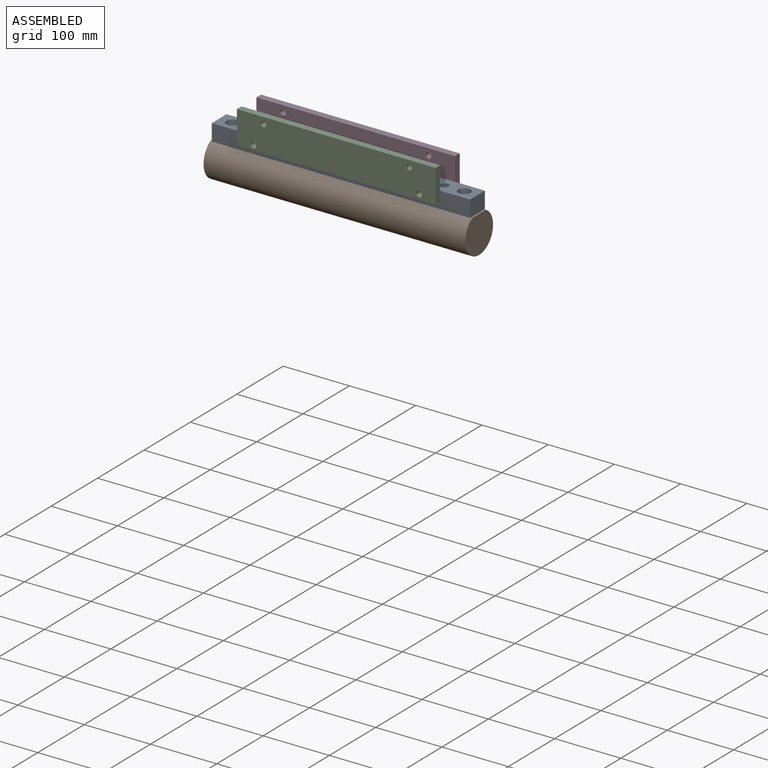
[diagram: assembled view]
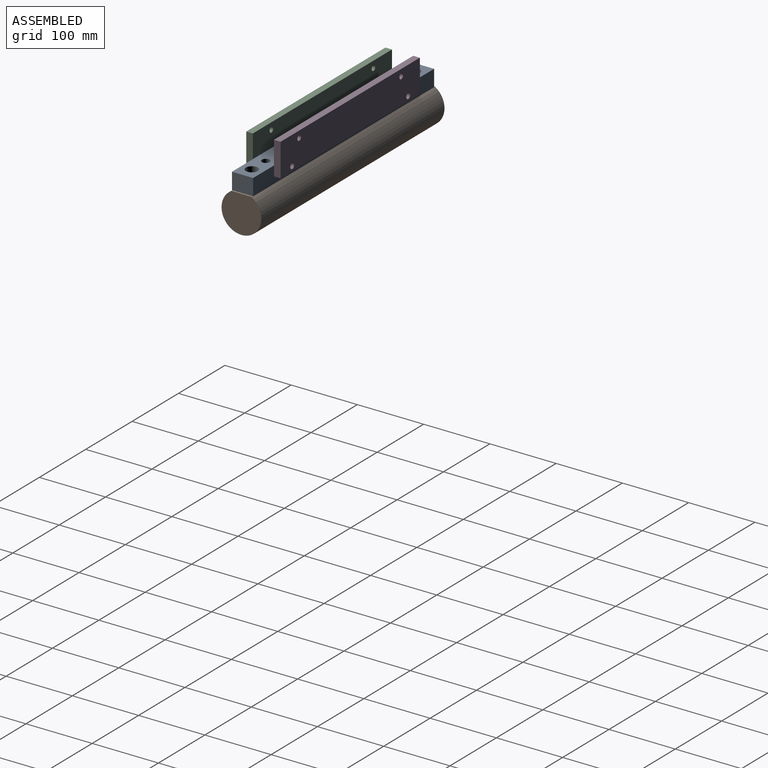
[diagram: assembled view, second angle]
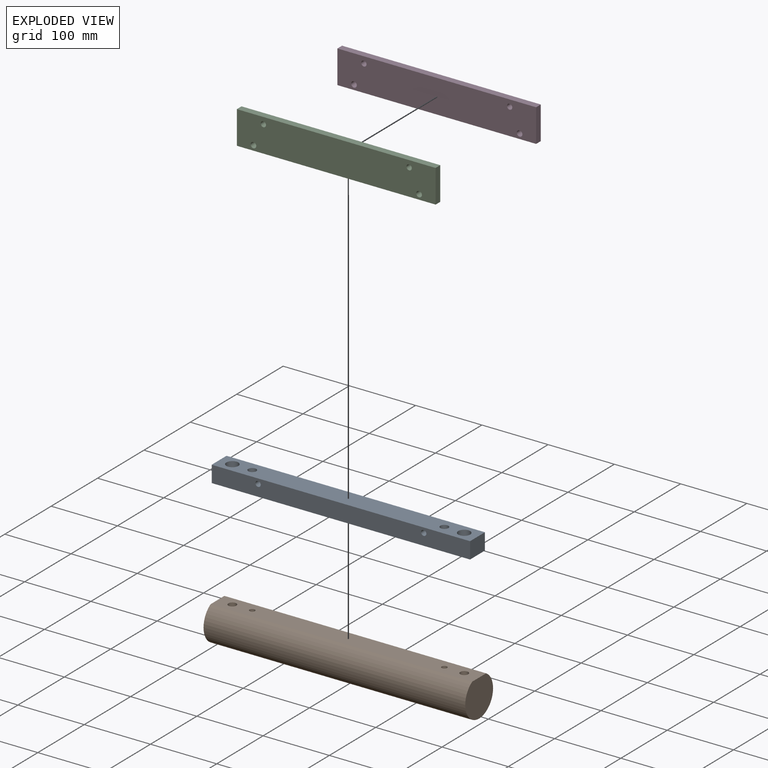
[diagram: exploded view]
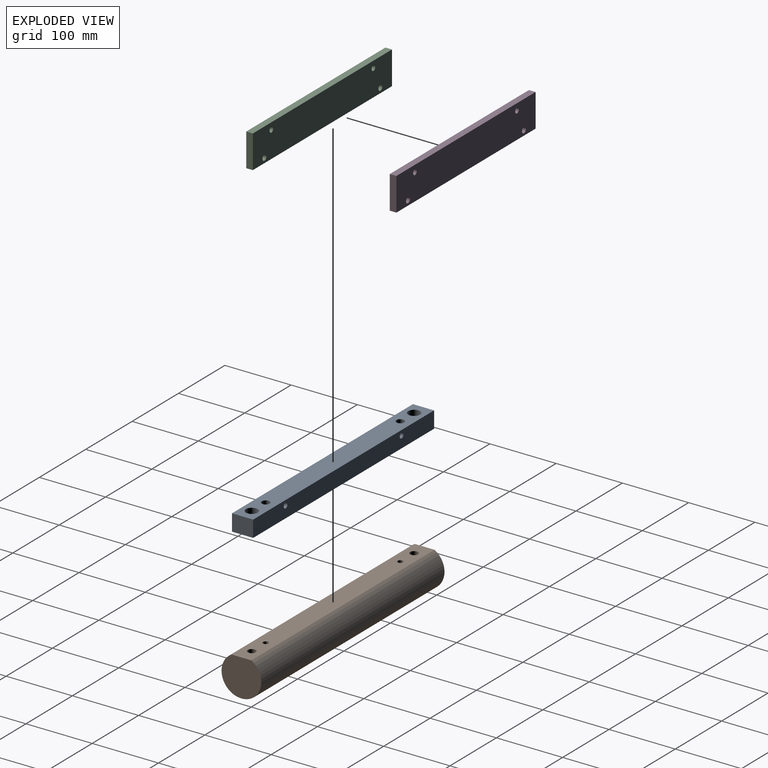
[diagram: exploded view, second angle]
ASSEMBLY  parts=4 mates=4
PART A: 16 faces, bbox 390x32x25 mm
  f0: cylinder r=6.5mm len=13mm, axis (0,0,-1), area 490.1mm2, adj f5,f12
  f1: cylinder r=6.5mm len=13mm, axis (0,0,-1), area 490.1mm2, adj f5,f10
  f2: plane 390x25mm, normal (0,1,0), area 9649.5mm2, adj f3,f5,f6,f7,f8,f9
  f3: plane 390x32mm, normal (0,0,1), area 11744.9mm2, adj f2,f4,f6,f7,f11,f13,f14,f15
  f4: plane 390x25mm, normal (0,-1,0), area 9649.5mm2, adj f3,f5,f6,f7,f8,f9
  f5: plane 390x32mm, normal (0,0,-1), area 11988.3mm2, adj f0,f1,f2,f4,f6,f7,f14,f15
  f6: plane 32x25mm, normal (1,0,0), area 800mm2, adj f2,f3,f4,f5
  f7: plane 32x25mm, normal (-1,0,0), area 800mm2, adj f2,f3,f4,f5
  f8: cylinder r=4mm len=32mm, axis (0,1,0), area 804.2mm2, adj f2,f4
  f9: cylinder r=4mm len=32mm, axis (0,1,0), area 804.2mm2, adj f2,f4
  f10: plane 18x18mm, normal (0,0,1), area 121.7mm2, adj f1,f11
  f11: cylinder r=9mm len=18mm, axis (0,0,1), area 735.1mm2, adj f3,f10
  f12: plane 18x18mm, normal (0,0,1), area 121.7mm2, adj f0,f13
  f13: cylinder r=9mm len=18mm, axis (0,0,1), area 735.1mm2, adj f3,f12
  f14: cylinder r=6mm len=25mm, axis (0,0,-1), area 942.5mm2, adj f3,f5
  f15: cylinder r=6mm len=25mm, axis (0,0,-1), area 942.5mm2, adj f3,f5
PART B: 10 faces, bbox 395x60x56 mm
  f0: cylinder r=30mm len=395mm, axis (-1,0,0), area 61975.7mm2, adj f1,f2,f3,f4,f5
  f1: plane 395x29.93mm, normal (0,0,-1), area 11496.9mm2, adj f0,f2,f3,f4,f5,f6,f7
  f2: plane 60x56mm, normal (1,0,0), area 2746.5mm2, adj f0,f1
  f3: plane 60x56mm, normal (-1,0,0), area 2746.5mm2, adj f0,f1
  f4: cylinder r=4mm len=56mm, axis (0,0,-1), area 1404.1mm2, adj f0,f1
  f5: cylinder r=4mm len=56mm, axis (0,0,-1), area 1404.1mm2, adj f0,f1
  f6: cylinder r=6mm len=37mm, axis (0,0,-1), area 1394.9mm2, adj f1,f8
  f7: cylinder r=6mm len=37mm, axis (0,0,-1), area 1394.9mm2, adj f1,f9
  f8: cone r=6mm half-angle=45deg, axis (0,0,-1), area 159.9mm2, adj f6
  f9: cone r=6mm half-angle=45deg, axis (0,0,-1), area 159.9mm2, adj f7
PART C: 10 faces, bbox 300x50x10 mm
  f0: plane 300x10mm, normal (0,1,0), area 3000mm2, adj f1,f3,f4,f5
  f1: plane 300x50mm, normal (0,0,1), area 14786mm2, adj f0,f2,f4,f5,f6,f7,f8,f9
  f2: plane 300x10mm, normal (0,-1,0), area 3000mm2, adj f1,f3,f4,f5
  f3: plane 300x50mm, normal (0,0,-1), area 14786mm2, adj f0,f2,f4,f5,f6,f7,f8,f9
  f4: plane 50x10mm, normal (1,0,0), area 500mm2, adj f0,f1,f2,f3
  f5: plane 50x10mm, normal (-1,0,0), area 500mm2, adj f0,f1,f2,f3
  f6: cylinder r=4.25mm len=10mm, axis (0,0,1), area 267mm2, adj f1,f3
  f7: cylinder r=4.25mm len=10mm, axis (0,0,1), area 267mm2, adj f1,f3
  f8: cylinder r=4mm len=10mm, axis (0,0,1), area 251.3mm2, adj f1,f3
  f9: cylinder r=4mm len=10mm, axis (0,0,1), area 251.3mm2, adj f1,f3
PART D: same geometry as C
PLACE A t=(505.11,83.55,-24.36)mm
PLACE B rot(axis=(0,-1,0),180deg) t=(897.61,83.55,-62.86)mm
PLACE C rot(axis=(0,-0.71,0.71),180deg) t=(850.11,62.55,-1.86)mm
PLACE D rot(axis=(0,0.71,-0.71),180deg) t=(850.11,104.55,-1.86)mm
MATE parallel C.f3 <-> A.f9  axis (0,1,0) through (700.11,67.55,-1.82)mm
MATE cylindrical D.f7 <-> A.f9  axis (0,-1,0) through (825.11,99.55,-19.36)mm
MATE cylindrical C.f6 <-> A.f8  axis (0,-1,0) through (575.11,57.55,-19.36)mm
MATE cylindrical B.f5 <-> A.f14  axis (0,0,1) through (845.11,83.55,-36.86)mm
